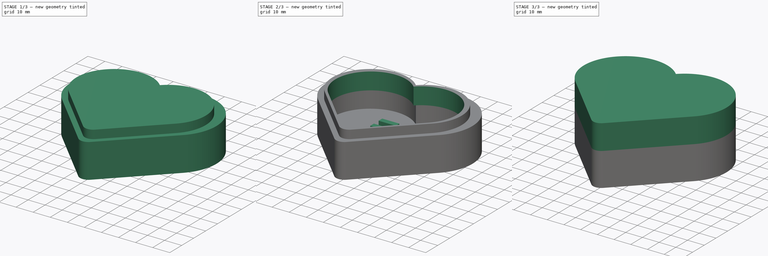
[diagram: build sequence overview — one tinted view per stage of 3, left to right]
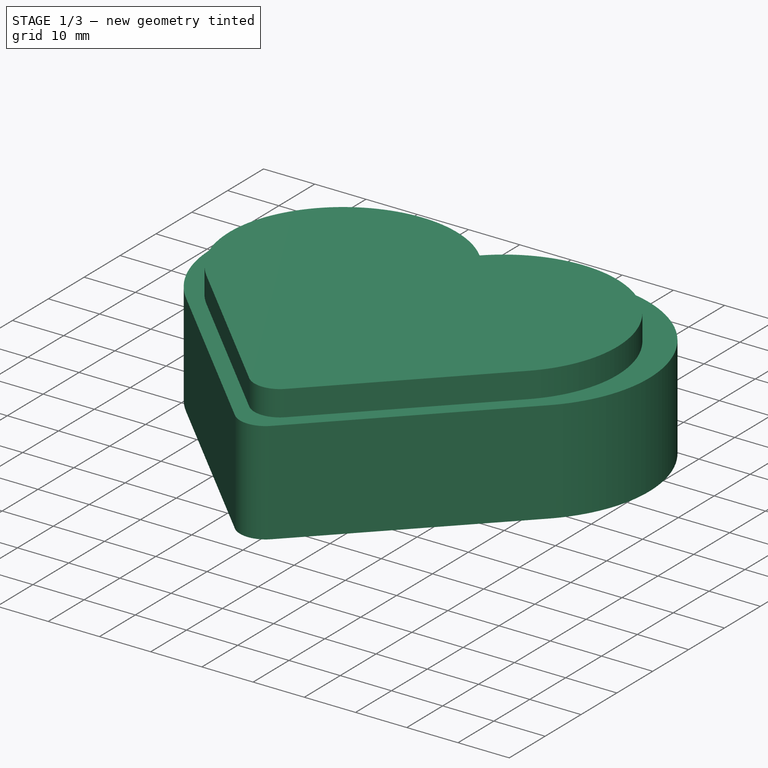
[diagram: stage 1 of 3 — iso view after this stage's code; geometry added in this stage tinted green]
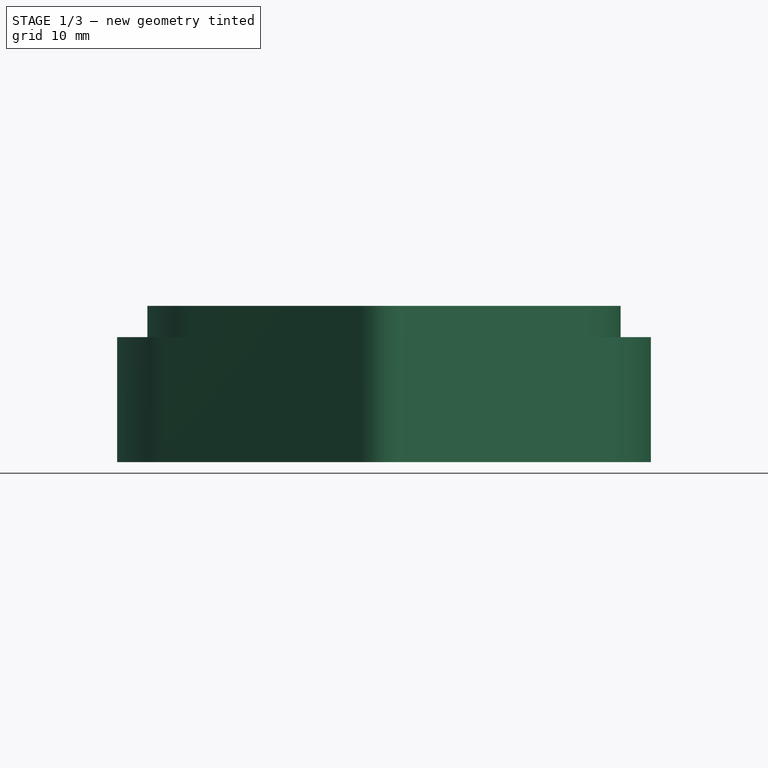
[diagram: stage 1 of 3 — front view after this stage's code; geometry added in this stage tinted green]
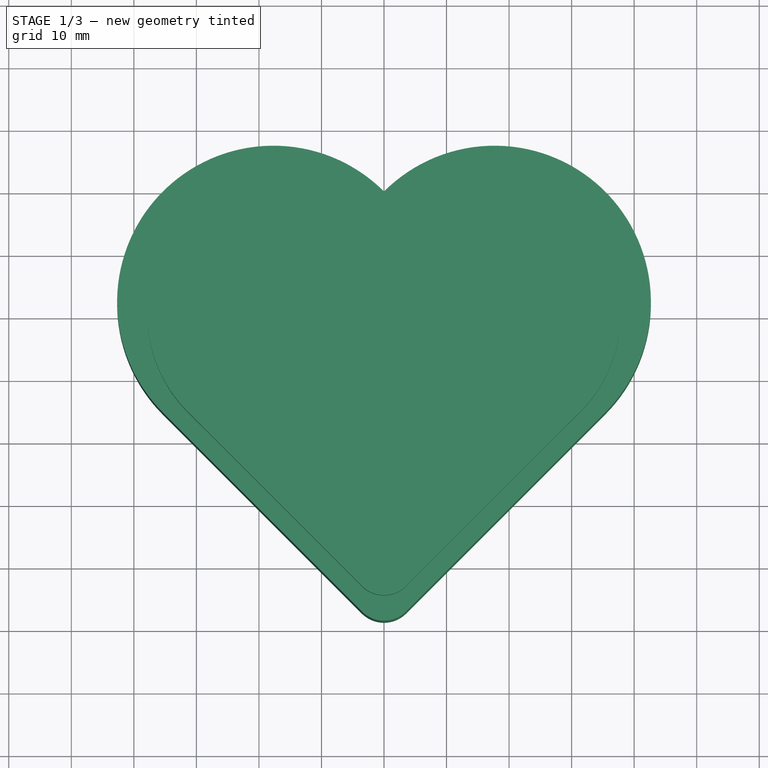
[diagram: stage 1 of 3 — top view after this stage's code; geometry added in this stage tinted green]
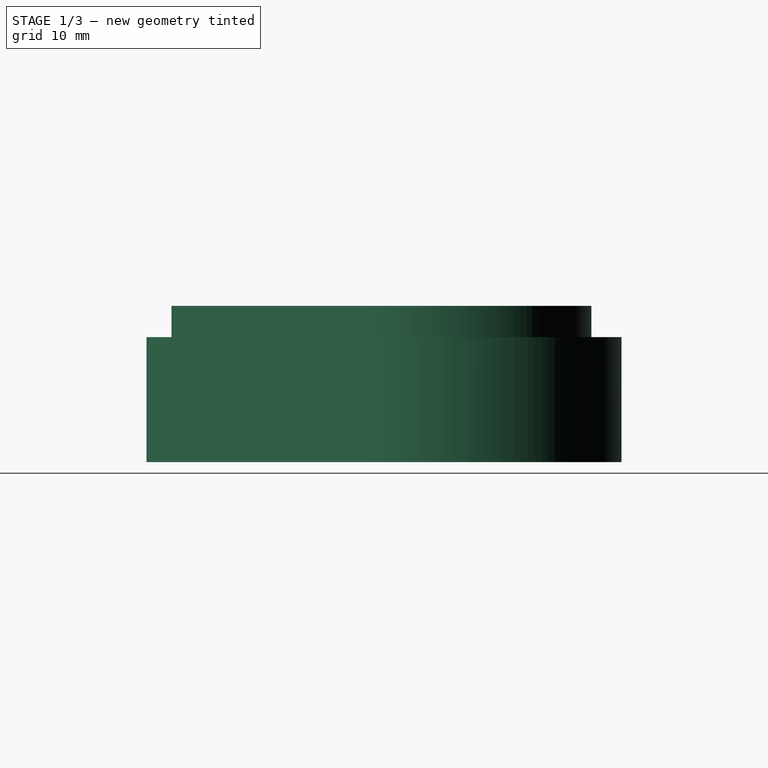
[diagram: stage 1 of 3 — right view after this stage's code; geometry added in this stage tinted green]
FCSTD DOCUMENT  (FreeCAD 0.20R29603 (Git))
Label: box
License: All rights reserved
LicenseURL: http://en.wikipedia.org/wiki/All_rights_reserved
objects: Sketcher::SketchObject×7, PartDesign::Pad×4, PartDesign::Plane×3, PartDesign::Pocket×3, PartDesign::Body×2, Spreadsheet::Sheet×1, PartDesign::Chamfer×1
note: 28 computed .brp shape members not serialized (recipe doc carries the construction recipe); baked Part::Feature solids carry a one-line shape summary decoded from their .brp

FEATURE [Sketcher::SketchObject] Sketch
  FullyConstrained = true
  MapMode = 5
  Support = -> [XY_Plane]
  expr: Constraints[14] = <<Spreadsheet>>.chamfer_size
  expr: Constraints[15] = <<Spreadsheet>>.chamfer_size
  expr: Constraints[9] = <<Spreadsheet>>.heart_size
  sketch-geometry (15):
    g0: LineSegment StartX=0 StartY=0 StartZ=0 EndX=-35.3553 EndY=-35.3553 EndZ=0
    g1: LineSegment StartX=-35.3553 StartY=-35.3553 StartZ=0 EndX=0 EndY=-70.7107 EndZ=0
    g2: LineSegment StartX=0 StartY=-70.7107 StartZ=0 EndX=35.3553 EndY=-35.3553 EndZ=0
    g3: LineSegment StartX=35.3553 StartY=-35.3553 StartZ=0 EndX=0 EndY=0 EndZ=0
    g4: GeomPoint X=-17.6777 Y=-17.6777 Z=0
    g5: GeomPoint X=17.6777 Y=-17.6777 Z=0
    g6: GeomPoint X=-3.53553 Y=-67.1751 Z=0
    g7: GeomPoint X=3.53553 Y=-67.1751 Z=0
    g8: LineSegment StartX=-3.53553 StartY=-67.1751 StartZ=0 EndX=-8.9e-15 EndY=-63.6396 EndZ=0
    g9: LineSegment StartX=-8.9e-15 StartY=-63.6396 StartZ=0 EndX=3.53553 EndY=-67.1751 EndZ=0
    g10: ArcOfCircle CenterX=-8.9e-15 CenterY=-63.6396 CenterZ=0 NormalX=0 NormalY=0 NormalZ=1 AngleXU=0 Radius=5 StartAngle=3.92699 EndAngle=5.49779
    g11: LineSegment StartX=-3.53553 StartY=-67.1751 StartZ=0 EndX=-35.3553 EndY=-35.3553 EndZ=0
    g12: LineSegment StartX=3.53553 StartY=-67.1751 StartZ=0 EndX=35.3553 EndY=-35.3553 EndZ=0
    g13: ArcOfCircle CenterX=17.6777 CenterY=-17.6777 CenterZ=0 NormalX=0 NormalY=0 NormalZ=1 AngleXU=0 Radius=25 StartAngle=5.49779 EndAngle=8.63938
    g14: ArcOfCircle CenterX=-17.6777 CenterY=-17.6777 CenterZ=0 NormalX=0 NormalY=0 NormalZ=1 AngleXU=0 Radius=25 StartAngle=0.785398 EndAngle=3.92699
  constraints (33):
    c: Coincident(g-1,g0)
    c: Coincident(g0,g1)
    c: PointOnObject(g1,g-2)
    c: Coincident(g1,g2)
    c: Coincident(g2,g3)
    c: Coincident(g3,g0)
    c: Horizontal(g0,g2)
    c: Equal(g3,g0)
    c: Equal(g0,g2)
    c: Distance(g3) = 50
    c: Symmetric(g0,g0,g4)
    c: Symmetric(g0,g2,g5)
    c: PointOnObject(g6,g1)
    c: PointOnObject(g7,g2)
    c: Distance(g1,g6) = 5
    c: Distance(g7,g1) = 5
    c: Coincident(g8,g6)
    c: Coincident(g8,g9)
    c: Coincident(g9,g7)
    c: Coincident(g10,g8)
    c: Coincident(g10,g6)
    c: Coincident(g10,g7)
    c: Coincident(g11,g10)
    c: Coincident(g11,g0)
    c: Coincident(g12,g10)
    c: Coincident(g12,g2)
    c: Angle(g8,g9) = 1.5708
    c: Coincident(g13,g5)
    c: Coincident(g13,g12)
    c: Angle(g0,g3) = 1.5708
    c: Coincident(g14,g4)
    c: Coincident(g14,g13)
    c: Coincident(g14,g11)
FEATURE [Spreadsheet::Sheet] Spreadsheet
  cells = A1=Heart_size; B1(heart_size)=50; A2=Heart chamfer; B2(chamfer_size)=5; A3=bottom box height; B3(box_height)=20; A4=Box Wall; B4(box_wall)=4; A5=top box height; B5(top_box_height)=15; A6=Lip spacing; B6(lip_space)=0.2; A7=holder top space; B7(holder_edge_distance)=25; A8=Holder lip thickness; B8(holder_lip_thickness)=3; A9=Holder lip spacing; B9(holder_lip_spacing)=4; A10=Holder lip width; B10(holder_lip_width)=10; A11=Holder lip height; B11(holder_lip_height)=10
FEATURE [PartDesign::Pad] Pad  label="bottom_box_body"
  Direction = (0,0,1)
  Length = 20
  Length2 = 10
  Profile = -> Sketch
  ReferenceAxis = -> Sketch [N_Axis]
  Type = 0
  expr: Length = <<Spreadsheet>>.box_height
FEATURE [PartDesign::Plane] DatumPlane  label="bottom_bottom_plane"
  AttachmentOffset = pos=(0,0,4) rot=(0,0,1;0rad)
  Length = 103.157
  MapMode = 5
  Placement = pos=(0,0,4) rot=(0,0,1;0rad)
  ResizeMode = 0
  Support = -> [XY_Plane]
  Width = 111.478
  expr: .AttachmentOffset.Base.z = <<Spreadsheet>>.box_wall
FEATURE [Sketcher::SketchObject] Sketch001
  FullyConstrained = true
  MapMode = 5
  Placement = pos=(0,0,4) rot=(0,0,1;0rad)
  Support = -> [DatumPlane]
  expr: Constraints[10] = <<Spreadsheet>>.heart_size
  expr: Constraints[16] = Spreadsheet.box_wall
  expr: Constraints[29] = <<Spreadsheet>>.chamfer_size
  expr: Constraints[30] = <<Spreadsheet>>.chamfer_size
  sketch-geometry (21):
    g0: LineSegment StartX=0 StartY=0 StartZ=0 EndX=-35.3553 EndY=-35.3553 EndZ=0
    g1: LineSegment StartX=-35.3553 StartY=-35.3553 StartZ=0 EndX=0 EndY=-70.7107 EndZ=0
    g2: LineSegment StartX=0 StartY=-70.7107 StartZ=0 EndX=35.3553 EndY=-35.3553 EndZ=0
    g3: LineSegment StartX=35.3553 StartY=-35.3553 StartZ=0 EndX=0 EndY=0 EndZ=0
    g4: LineSegment StartX=0 StartY=-70.7107 StartZ=0 EndX=0 EndY=-66.7107 EndZ=0
    g5: LineSegment StartX=0 StartY=0 StartZ=0 EndX=0 EndY=-4 EndZ=0
    g6: LineSegment StartX=0 StartY=-4 StartZ=0 EndX=-31.3553 EndY=-35.3553 EndZ=0
    g7: LineSegment StartX=-31.3553 StartY=-35.3553 StartZ=0 EndX=0 EndY=-66.7107 EndZ=0
    g8: LineSegment StartX=0 StartY=-66.7107 StartZ=0 EndX=31.3553 EndY=-35.3553 EndZ=0
    g9: LineSegment StartX=31.3553 StartY=-35.3553 StartZ=0 EndX=0 EndY=-4 EndZ=0
    g10: GeomPoint X=-3.53553 Y=-63.1751 Z=0
    g11: GeomPoint X=3.53553 Y=-63.1751 Z=0
    g12: LineSegment StartX=-3.53553 StartY=-63.1751 StartZ=0 EndX=3.1e-15 EndY=-59.6396 EndZ=0
    g13: LineSegment StartX=3.1e-15 StartY=-59.6396 StartZ=0 EndX=3.53553 EndY=-63.1751 EndZ=0
    g14: ArcOfCircle CenterX=3.1e-15 CenterY=-59.6396 CenterZ=0 NormalX=0 NormalY=0 NormalZ=1 AngleXU=0 Radius=5 StartAngle=3.92699 EndAngle=5.49779
    g15: LineSegment StartX=-3.53553 StartY=-63.1751 StartZ=0 EndX=-31.3553 EndY=-35.3553 EndZ=0
    g16: LineSegment StartX=3.53553 StartY=-63.1751 StartZ=0 EndX=31.3553 EndY=-35.3553 EndZ=0
    g17: GeomPoint X=-15.6777 Y=-19.6777 Z=0
    g18: GeomPoint X=15.6777 Y=-19.6777 Z=0
    g19: ArcOfCircle CenterX=-15.6777 CenterY=-19.6777 CenterZ=0 NormalX=0 NormalY=0 NormalZ=1 AngleXU=0 Radius=22.1716 StartAngle=0.785398 EndAngle=3.92699
    g20: ArcOfCircle CenterX=15.6777 CenterY=-19.6777 CenterZ=0 NormalX=0 NormalY=0 NormalZ=1 AngleXU=0 Radius=22.1716 StartAngle=5.49779 EndAngle=8.63938
  constraints (49):
    c: Coincident(g-1,g0)
    c: Coincident(g0,g1)
    c: PointOnObject(g1,g-2)
    c: Coincident(g1,g2)
    c: Coincident(g2,g3)
    c: Coincident(g3,g0)
    c: Equal(g0,g3)
    c: Equal(g3,g2)
    c: Equal(g2,g1)
    c: Angle(g0,g3) = 1.5708
    c: Distance(g3) = 50
    c: Coincident(g4,g1)
    c: PointOnObject(g4,g-2)
    c: Coincident(g5,g0)
    c: PointOnObject(g5,g-2)
    c: Equal(g5,g4)
    c: Distance(g4) = 4
    c: Coincident(g5,g6)
    c: Coincident(g6,g7)
    c: Coincident(g7,g4)
    c: Coincident(g7,g8)
    c: Coincident(g8,g9)
    c: Coincident(g9,g6)
    c: Equal(g6,g9)
    c: Equal(g9,g7)
    c: Equal(g7,g8)
    c: Angle(g6,g9) = 1.5708
    c: PointOnObject(g10,g7)
    c: PointOnObject(g11,g8)
    c: Distance(g10,g4) = 5
    c: Distance(g11,g4) = 5
    c: Coincident(g12,g10)
    c: Coincident(g12,g13)
    c: Coincident(g13,g11)
    c: Coincident(g14,g12)
    c: Coincident(g14,g10)
    c: Coincident(g14,g11)
    c: Coincident(g15,g14)
    c: Coincident(g15,g6)
    c: Coincident(g16,g14)
    c: Coincident(g16,g8)
    c: Symmetric(g5,g15,g17)
    c: Symmetric(g5,g16,g18)
    c: Coincident(g19,g17)
    c: Coincident(g19,g15)
    c: Coincident(g20,g18)
    c: Coincident(g20,g16)
    c: Coincident(g20,g19)
    c: Angle(g12,g13) = 1.5708
FEATURE [PartDesign::Pocket] Pocket  label="bottom_box_cavity"
  BaseFeature = -> Pad
  Direction = (0,0,-1)
  Length = 16
  Length2 = 5
  Profile = -> Sketch001
  ReferenceAxis = -> Sketch001 [N_Axis]
  Reversed = true
  Type = 0
  expr: Length = <<Spreadsheet>>.box_height - <<Spreadsheet>>.box_wall
FEATURE [PartDesign::Body] Body001  label="box_top_body"
  Group = -> [DatumPlane001,Sketch002,Pad001,Sketch003,Pocket001]
  Origin = -> Origin001
  Tip = -> Pocket001
FEATURE [PartDesign::Plane] DatumPlane002  label="bottom_box_lip_plane"
  AttachmentOffset = pos=(0,0,15) rot=(0,0,1;0rad)
  Length = 103.157
  MapMode = 5
  Placement = pos=(0,0,15) rot=(0,0,1;0rad)
  ResizeMode = 0
  Support = -> [XY_Plane]
  Width = 111.478
  expr: .AttachmentOffset.Base.x = 0
  expr: .AttachmentOffset.Base.z = <<Spreadsheet>>.box_height - 5
FEATURE [Sketcher::SketchObject] Sketch004
  FullyConstrained = true
  MapMode = 5
  Placement = pos=(0,0,15) rot=(0,0,1;0rad)
  Support = -> [DatumPlane002]
  expr: Constraints[10] = <<Spreadsheet>>.heart_size
  expr: Constraints[16] = Spreadsheet.box_wall
  expr: Constraints[29] = <<Spreadsheet>>.chamfer_size
  expr: Constraints[30] = <<Spreadsheet>>.chamfer_size
  sketch-geometry (21):
    g0: LineSegment StartX=0 StartY=0 StartZ=0 EndX=-35.3553 EndY=-35.3553 EndZ=0
    g1: LineSegment StartX=-35.3553 StartY=-35.3553 StartZ=0 EndX=0 EndY=-70.7107 EndZ=0
    g2: LineSegment StartX=0 StartY=-70.7107 StartZ=0 EndX=35.3553 EndY=-35.3553 EndZ=0
    g3: LineSegment StartX=35.3553 StartY=-35.3553 StartZ=0 EndX=0 EndY=0 EndZ=0
    g4: LineSegment StartX=0 StartY=-70.7107 StartZ=0 EndX=0 EndY=-66.7107 EndZ=0
    g5: LineSegment StartX=0 StartY=0 StartZ=0 EndX=0 EndY=-4 EndZ=0
    g6: LineSegment StartX=0 StartY=-4 StartZ=0 EndX=-31.3553 EndY=-35.3553 EndZ=0
    g7: LineSegment StartX=-31.3553 StartY=-35.3553 StartZ=0 EndX=0 EndY=-66.7107 EndZ=0
    g8: LineSegment StartX=0 StartY=-66.7107 StartZ=0 EndX=31.3553 EndY=-35.3553 EndZ=0
    g9: LineSegment StartX=31.3553 StartY=-35.3553 StartZ=0 EndX=0 EndY=-4 EndZ=0
    g10: GeomPoint X=-3.53553 Y=-63.1751 Z=0
    g11: GeomPoint X=3.53553 Y=-63.1751 Z=0
    g12: LineSegment StartX=-3.53553 StartY=-63.1751 StartZ=0 EndX=3.1e-15 EndY=-59.6396 EndZ=0
    g13: LineSegment StartX=3.1e-15 StartY=-59.6396 StartZ=0 EndX=3.53553 EndY=-63.1751 EndZ=0
    g14: ArcOfCircle CenterX=3.1e-15 CenterY=-59.6396 CenterZ=0 NormalX=0 NormalY=0 NormalZ=1 AngleXU=0 Radius=5 StartAngle=3.92699 EndAngle=5.49779
    g15: LineSegment StartX=-3.53553 StartY=-63.1751 StartZ=0 EndX=-31.3553 EndY=-35.3553 EndZ=0
    g16: LineSegment StartX=3.53553 StartY=-63.1751 StartZ=0 EndX=31.3553 EndY=-35.3553 EndZ=0
    g17: GeomPoint X=-15.6777 Y=-19.6777 Z=0
    g18: GeomPoint X=15.6777 Y=-19.6777 Z=0
    g19: ArcOfCircle CenterX=-15.6777 CenterY=-19.6777 CenterZ=0 NormalX=0 NormalY=0 NormalZ=1 AngleXU=0 Radius=22.1716 StartAngle=0.785398 EndAngle=3.92699
    g20: ArcOfCircle CenterX=15.6777 CenterY=-19.6777 CenterZ=0 NormalX=0 NormalY=0 NormalZ=1 AngleXU=0 Radius=22.1716 StartAngle=5.49779 EndAngle=8.63938
  constraints (49):
    c: Coincident(g-1,g0)
    c: Coincident(g0,g1)
    c: PointOnObject(g1,g-2)
    c: Coincident(g1,g2)
    c: Coincident(g2,g3)
    c: Coincident(g3,g0)
    c: Equal(g0,g3)
    c: Equal(g3,g2)
    c: Equal(g2,g1)
    c: Angle(g0,g3) = 1.5708
    c: Distance(g3) = 50
    c: Coincident(g4,g1)
    c: PointOnObject(g4,g-2)
    c: Coincident(g5,g0)
    c: PointOnObject(g5,g-2)
    c: Equal(g5,g4)
    c: Distance(g4) = 4
    c: Coincident(g5,g6)
    c: Coincident(g6,g7)
    c: Coincident(g7,g4)
    c: Coincident(g7,g8)
    c: Coincident(g8,g9)
    c: Coincident(g9,g6)
    c: Equal(g6,g9)
    c: Equal(g9,g7)
    c: Equal(g7,g8)
    c: Angle(g6,g9) = 1.5708
    c: PointOnObject(g10,g7)
    c: PointOnObject(g11,g8)
    c: Distance(g10,g4) = 5
    c: Distance(g11,g4) = 5
    c: Coincident(g12,g10)
    c: Coincident(g12,g13)
    c: Coincident(g13,g11)
    c: Coincident(g14,g12)
    c: Coincident(g14,g10)
    c: Coincident(g14,g11)
    c: Coincident(g15,g14)
    c: Coincident(g15,g6)
    c: Coincident(g16,g14)
    c: Coincident(g16,g8)
    c: Symmetric(g5,g15,g17)
    c: Symmetric(g5,g16,g18)
    c: Coincident(g19,g17)
    c: Coincident(g19,g15)
    c: Coincident(g20,g18)
    c: Coincident(g20,g16)
    c: Coincident(g20,g19)
    c: Angle(g12,g13) = 1.5708
FEATURE [PartDesign::Pad] Pad002  label="bottom_box_lip_pad"
  BaseFeature = -> Pocket
  Direction = (0,0,1)
  Length = 10
  Length2 = 10
  Profile = -> Sketch004
  ReferenceAxis = -> Sketch004 [N_Axis]
  Type = 0
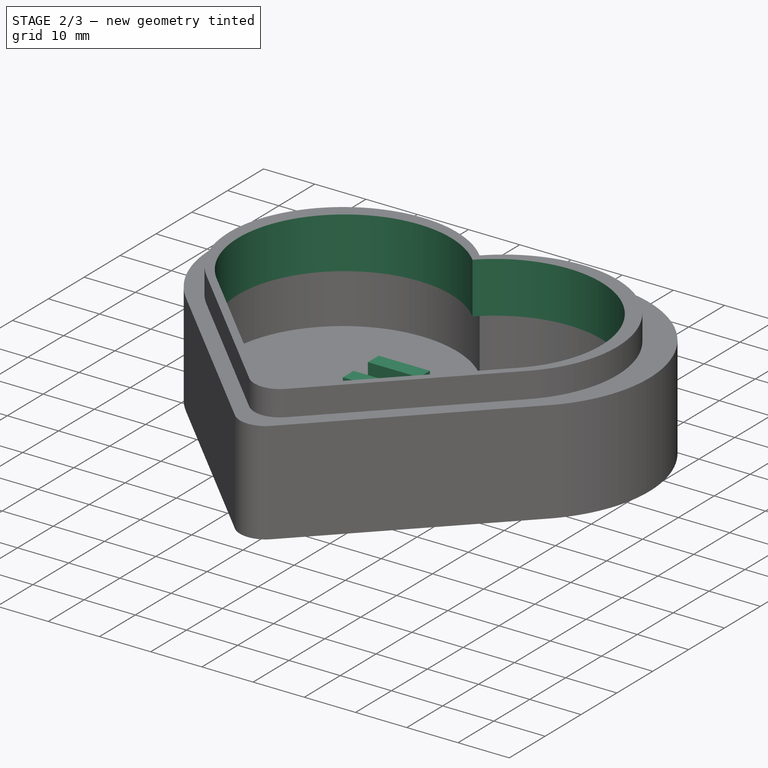
[diagram: stage 2 of 3 — iso view after this stage's code; geometry added in this stage tinted green]
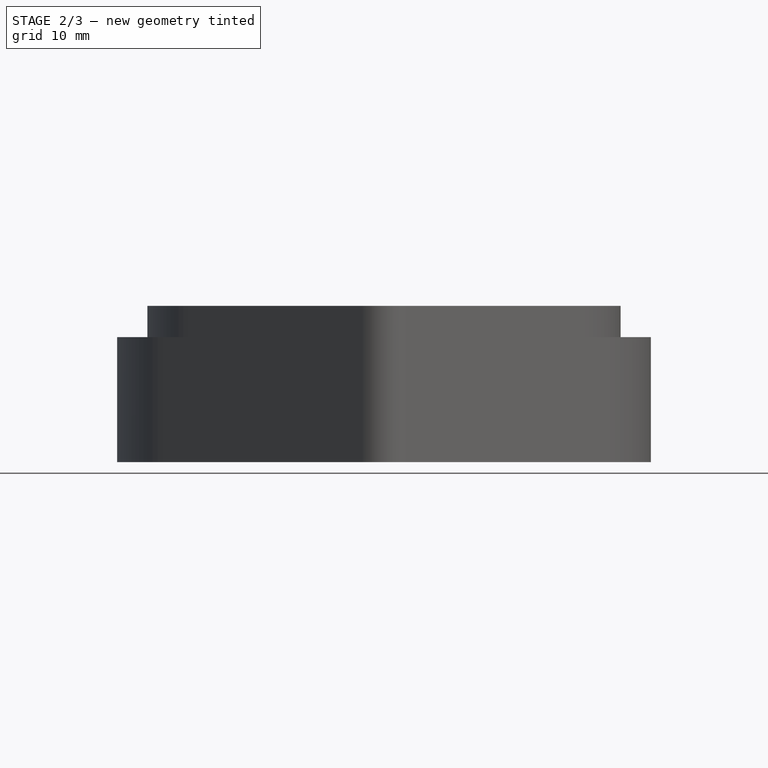
[diagram: stage 2 of 3 — front view after this stage's code; geometry added in this stage tinted green]
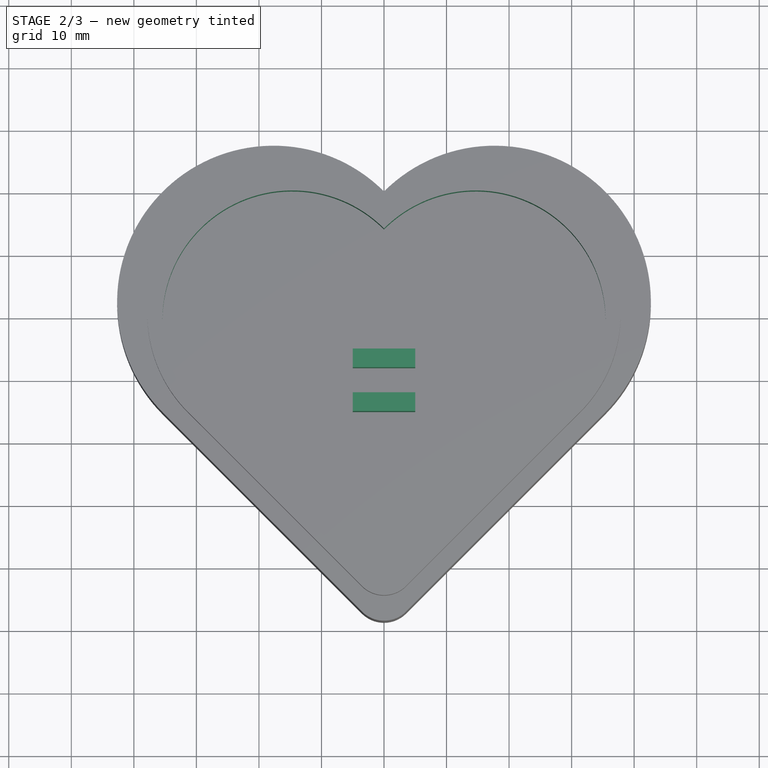
[diagram: stage 2 of 3 — top view after this stage's code; geometry added in this stage tinted green]
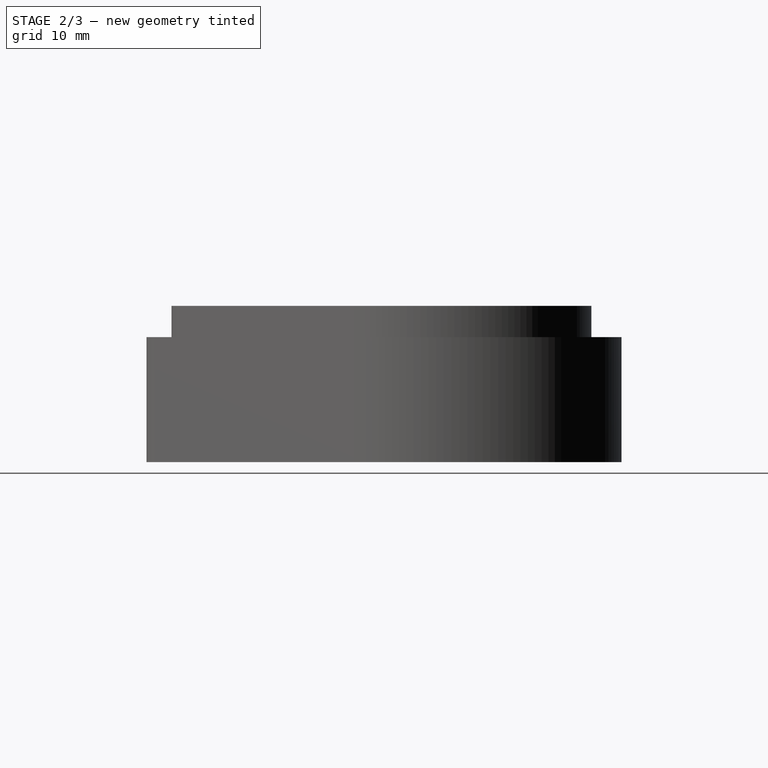
[diagram: stage 2 of 3 — right view after this stage's code; geometry added in this stage tinted green]
FEATURE [Sketcher::SketchObject] Sketch005
  FullyConstrained = true
  MapMode = 5
  Placement = pos=(0,0,15) rot=(0,0,1;0rad)
  Support = -> [DatumPlane002]
  expr: Constraints[10] = <<Spreadsheet>>.heart_size
  expr: Constraints[16] = Spreadsheet.box_wall + 2
  expr: Constraints[29] = <<Spreadsheet>>.chamfer_size
  expr: Constraints[30] = <<Spreadsheet>>.chamfer_size
  sketch-geometry (21):
    g0: LineSegment StartX=0 StartY=0 StartZ=0 EndX=-35.3553 EndY=-35.3553 EndZ=0
    g1: LineSegment StartX=-35.3553 StartY=-35.3553 StartZ=0 EndX=0 EndY=-70.7107 EndZ=0
    g2: LineSegment StartX=0 StartY=-70.7107 StartZ=0 EndX=35.3553 EndY=-35.3553 EndZ=0
    g3: LineSegment StartX=35.3553 StartY=-35.3553 StartZ=0 EndX=0 EndY=0 EndZ=0
    g4: LineSegment StartX=0 StartY=-70.7107 StartZ=0 EndX=0 EndY=-64.7107 EndZ=0
    g5: LineSegment StartX=0 StartY=0 StartZ=0 EndX=-3.6e-15 EndY=-6 EndZ=0
    g6: LineSegment StartX=-3.6e-15 StartY=-6 StartZ=0 EndX=-29.3553 EndY=-35.3553 EndZ=0
    g7: LineSegment StartX=-29.3553 StartY=-35.3553 StartZ=0 EndX=0 EndY=-64.7107 EndZ=0
    g8: LineSegment StartX=0 StartY=-64.7107 StartZ=0 EndX=29.3553 EndY=-35.3553 EndZ=0
    g9: LineSegment StartX=29.3553 StartY=-35.3553 StartZ=0 EndX=-3.6e-15 EndY=-6 EndZ=0
    g10: GeomPoint X=-3.53553 Y=-61.1751 Z=0
    g11: GeomPoint X=3.53553 Y=-61.1751 Z=0
    g12: LineSegment StartX=-3.53553 StartY=-61.1751 StartZ=0 EndX=0 EndY=-57.6396 EndZ=0
    g13: LineSegment StartX=0 StartY=-57.6396 StartZ=0 EndX=3.53553 EndY=-61.1751 EndZ=0
    g14: ArcOfCircle CenterX=0 CenterY=-57.6396 CenterZ=0 NormalX=0 NormalY=0 NormalZ=1 AngleXU=0 Radius=5 StartAngle=3.92699 EndAngle=5.49779
    g15: LineSegment StartX=-3.53553 StartY=-61.1751 StartZ=0 EndX=-29.3553 EndY=-35.3553 EndZ=0
    g16: LineSegment StartX=3.53553 StartY=-61.1751 StartZ=0 EndX=29.3553 EndY=-35.3553 EndZ=0
    g17: GeomPoint X=-14.6777 Y=-20.6777 Z=0
    g18: GeomPoint X=14.6777 Y=-20.6777 Z=0
    g19: ArcOfCircle CenterX=-14.6777 CenterY=-20.6777 CenterZ=0 NormalX=0 NormalY=0 NormalZ=1 AngleXU=0 Radius=20.7574 StartAngle=0.785398 EndAngle=3.92699
    g20: ArcOfCircle CenterX=14.6777 CenterY=-20.6777 CenterZ=0 NormalX=0 NormalY=0 NormalZ=1 AngleXU=0 Radius=20.7574 StartAngle=5.49779 EndAngle=8.63938
  constraints (49):
    c: Coincident(g-1,g0)
    c: Coincident(g0,g1)
    c: PointOnObject(g1,g-2)
    c: Coincident(g1,g2)
    c: Coincident(g2,g3)
    c: Coincident(g3,g0)
    c: Equal(g0,g3)
    c: Equal(g3,g2)
    c: Equal(g2,g1)
    c: Angle(g0,g3) = 1.5708
    c: Distance(g3) = 50
    c: Coincident(g4,g1)
    c: PointOnObject(g4,g-2)
    c: Coincident(g5,g0)
    c: PointOnObject(g5,g-2)
    c: Equal(g5,g4)
    c: Distance(g4) = 6
    c: Coincident(g5,g6)
    c: Coincident(g6,g7)
    c: Coincident(g7,g4)
    c: Coincident(g7,g8)
    c: Coincident(g8,g9)
    c: Coincident(g9,g6)
    c: Equal(g6,g9)
    c: Equal(g9,g7)
    c: Equal(g7,g8)
    c: Angle(g6,g9) = 1.5708
    c: PointOnObject(g10,g7)
    c: PointOnObject(g11,g8)
    c: Distance(g10,g4) = 5
    c: Distance(g11,g4) = 5
    c: Coincident(g12,g10)
    c: Coincident(g12,g13)
    c: Coincident(g13,g11)
    c: Coincident(g14,g12)
    c: Coincident(g14,g10)
    c: Coincident(g14,g11)
    c: Coincident(g15,g14)
    c: Coincident(g15,g6)
    c: Coincident(g16,g14)
    c: Coincident(g16,g8)
    c: Symmetric(g5,g15,g17)
    c: Symmetric(g5,g16,g18)
    c: Coincident(g19,g17)
    c: Coincident(g19,g15)
    c: Coincident(g20,g18)
    c: Coincident(g20,g16)
    c: Coincident(g20,g19)
    c: Angle(g12,g13) = 1.5708
FEATURE [PartDesign::Pocket] Pocket002  label="bottom_box_lip_pocket"
  BaseFeature = -> Pad002
  Direction = (0,0,-1)
  Length = 10
  Length2 = 5
  Profile = -> Sketch005
  ReferenceAxis = -> Sketch005 [N_Axis]
  Reversed = true
  Type = 0
FEATURE [Sketcher::SketchObject] Sketch006
  FullyConstrained = true
  MapMode = 5
  Placement = pos=(0,0,4) rot=(0,0,1;0rad)
  Support = -> [DatumPlane]
  expr: Constraints[12] = <<Spreadsheet>>.holder_lip_thickness
  expr: Constraints[13] = <<Spreadsheet>>.holder_lip_width
  expr: Constraints[16] = Spreadsheet.holder_lip_spacing
  expr: Constraints[2] = <<Spreadsheet>>.holder_edge_distance
  sketch-geometry (10):
    g0: LineSegment StartX=0 StartY=0 StartZ=0 EndX=0 EndY=-25 EndZ=0
    g1: LineSegment StartX=-5 StartY=-28 StartZ=0 EndX=5 EndY=-28 EndZ=0
    g2: LineSegment StartX=5 StartY=-28 StartZ=0 EndX=5 EndY=-25 EndZ=0
    g3: LineSegment StartX=5 StartY=-25 StartZ=0 EndX=-5 EndY=-25 EndZ=0
    g4: LineSegment StartX=-5 StartY=-25 StartZ=0 EndX=-5 EndY=-28 EndZ=0
    g5: LineSegment StartX=-4e-16 StartY=-28 StartZ=0 EndX=0 EndY=-32 EndZ=0
    g6: LineSegment StartX=-5 StartY=-32 StartZ=0 EndX=5 EndY=-32 EndZ=0
    g7: LineSegment StartX=5 StartY=-32 StartZ=0 EndX=5 EndY=-35 EndZ=0
    g8: LineSegment StartX=5 StartY=-35 StartZ=0 EndX=-5 EndY=-35 EndZ=0
    g9: LineSegment StartX=-5 StartY=-35 StartZ=0 EndX=-5 EndY=-32 EndZ=0
  constraints (28):
    c: Coincident(g0,g-1)
    c: PointOnObject(g0,g-2)
    c: Distance(g0) = 25
    c: Coincident(g1,g2)
    c: Coincident(g2,g3)
    c: Coincident(g3,g4)
    c: Coincident(g4,g1)
    c: Horizontal(g1)
    c: Horizontal(g3)
    c: Vertical(g2)
    c: Vertical(g4)
    c: Symmetric(g3,g2,g0)
    c: Distance(g2) = 3
    c: Distance(g3) = 10
    c: PointOnObject(g5,g-2)
    c: Symmetric(g1,g1,g5)
    c: Distance(g5) = 4
    c: Coincident(g6,g7)
    c: Coincident(g7,g8)
    c: Coincident(g8,g9)
    c: Coincident(g9,g6)
    c: Horizontal(g6)
    c: Horizontal(g8)
    c: Vertical(g7)
    c: Vertical(g9)
    c: Symmetric(g6,g6,g5)
    c: Equal(g6,g3)
    c: Equal(g7,g2)
FEATURE [PartDesign::Pad] Pad003  label="holder_lips_pad"
  BaseFeature = -> Pocket002
  Direction = (0,0,1)
  Length = 10
  Length2 = 10
  Profile = -> Sketch006
  ReferenceAxis = -> Sketch006 [N_Axis]
  Type = 0
  expr: Length = <<Spreadsheet>>.holder_lip_height
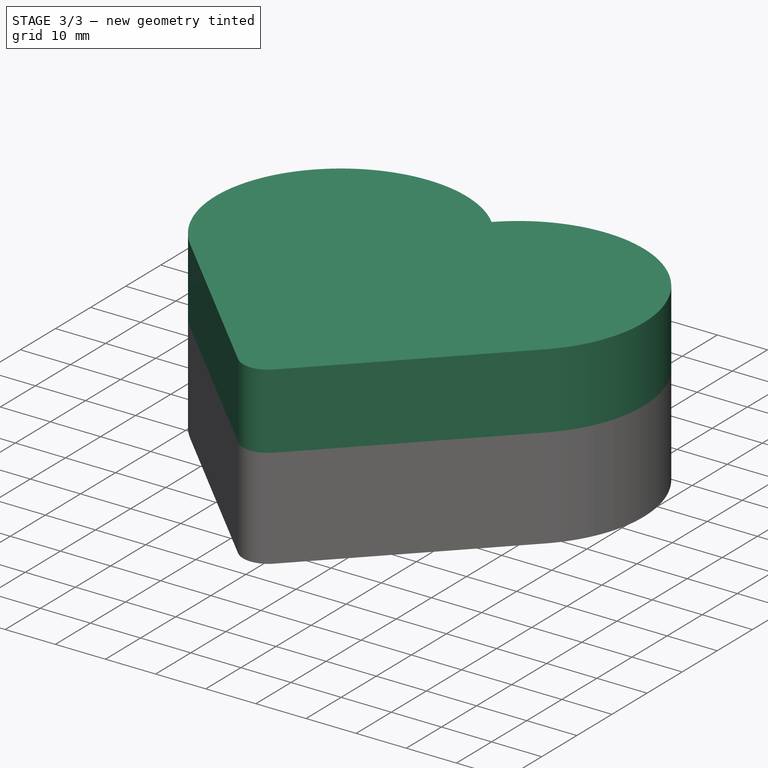
[diagram: stage 3 of 3 — iso view after this stage's code; geometry added in this stage tinted green]
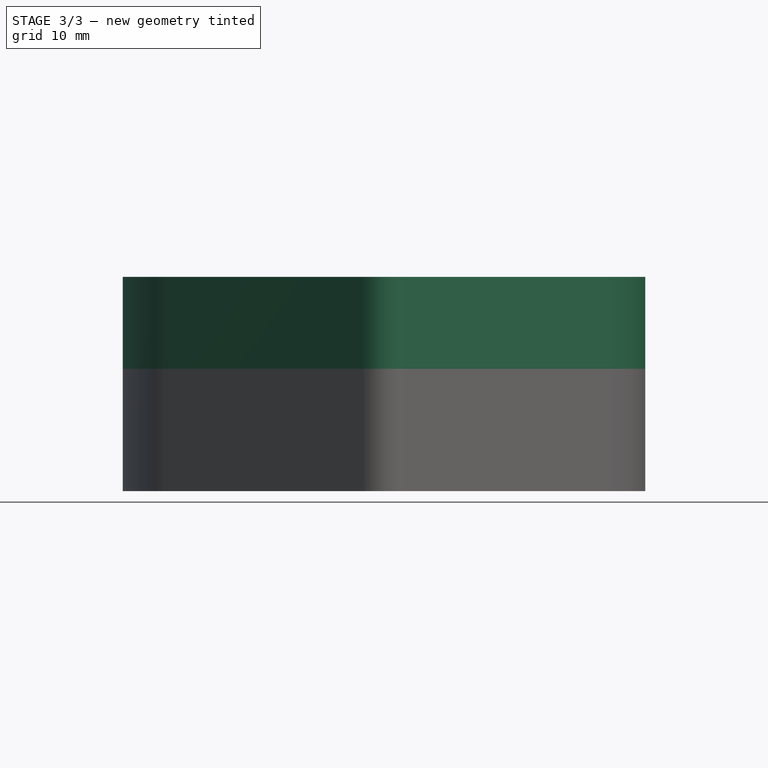
[diagram: stage 3 of 3 — front view after this stage's code; geometry added in this stage tinted green]
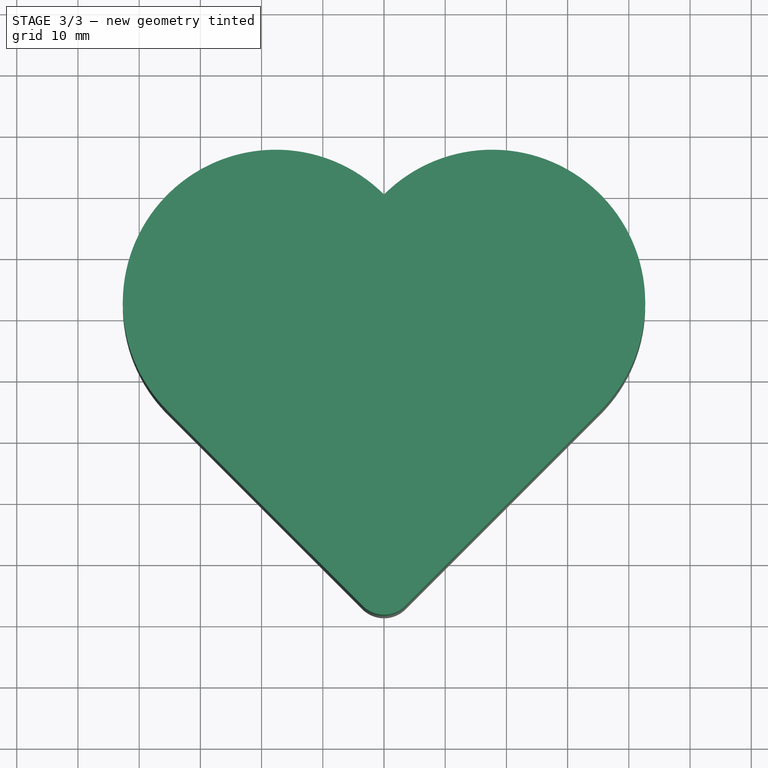
[diagram: stage 3 of 3 — top view after this stage's code; geometry added in this stage tinted green]
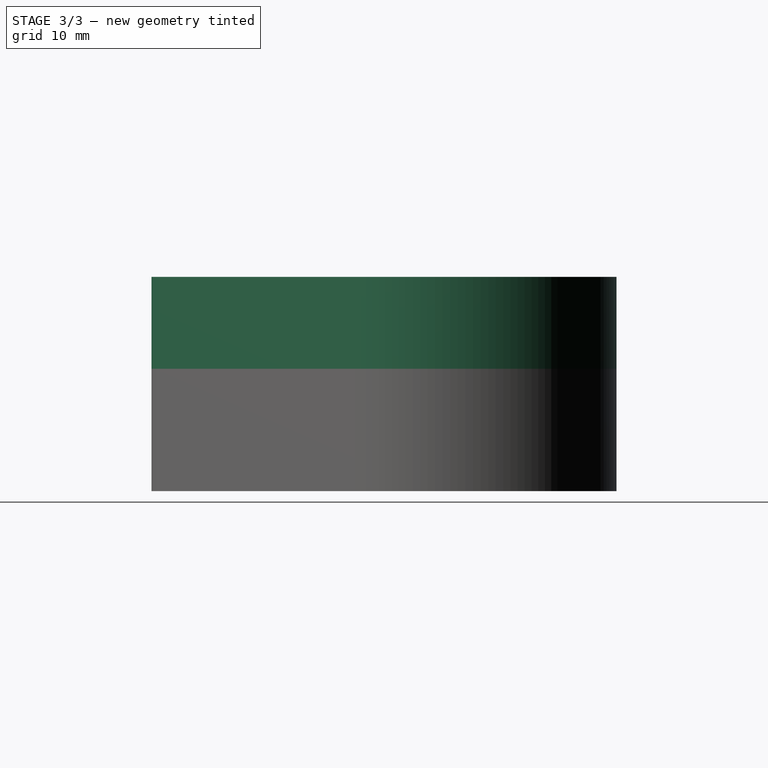
[diagram: stage 3 of 3 — right view after this stage's code; geometry added in this stage tinted green]
FEATURE [PartDesign::Plane] DatumPlane001  label="top_bottom_plane"
  AttachmentOffset = pos=(0,0,20) rot=(0,0,1;0rad)
  Length = 103.157
  MapMode = 5
  Placement = pos=(0,0,20) rot=(0,0,1;0rad)
  ResizeMode = 0
  Support = -> [XY_Plane001]
  Width = 111.478
  expr: .AttachmentOffset.Base.z = <<Spreadsheet>>.box_height
FEATURE [Sketcher::SketchObject] Sketch002
  FullyConstrained = true
  MapMode = 5
  Placement = pos=(0,0,20) rot=(0,0,1;0rad)
  Support = -> [DatumPlane001]
  expr: Constraints[14] = <<Spreadsheet>>.chamfer_size
  expr: Constraints[15] = <<Spreadsheet>>.chamfer_size
  expr: Constraints[9] = <<Spreadsheet>>.heart_size
  sketch-geometry (15):
    g0: LineSegment StartX=0 StartY=0 StartZ=0 EndX=-35.3553 EndY=-35.3553 EndZ=0
    g1: LineSegment StartX=-35.3553 StartY=-35.3553 StartZ=0 EndX=0 EndY=-70.7107 EndZ=0
    g2: LineSegment StartX=0 StartY=-70.7107 StartZ=0 EndX=35.3553 EndY=-35.3553 EndZ=0
    g3: LineSegment StartX=35.3553 StartY=-35.3553 StartZ=0 EndX=0 EndY=0 EndZ=0
    g4: GeomPoint X=-17.6777 Y=-17.6777 Z=0
    g5: GeomPoint X=17.6777 Y=-17.6777 Z=0
    g6: GeomPoint X=-3.53553 Y=-67.1751 Z=0
    g7: GeomPoint X=3.53553 Y=-67.1751 Z=0
    g8: LineSegment StartX=-3.53553 StartY=-67.1751 StartZ=0 EndX=-8.9e-15 EndY=-63.6396 EndZ=0
    g9: LineSegment StartX=-8.9e-15 StartY=-63.6396 StartZ=0 EndX=3.53553 EndY=-67.1751 EndZ=0
    g10: ArcOfCircle CenterX=-8.9e-15 CenterY=-63.6396 CenterZ=0 NormalX=0 NormalY=0 NormalZ=1 AngleXU=0 Radius=5 StartAngle=3.92699 EndAngle=5.49779
    g11: LineSegment StartX=-3.53553 StartY=-67.1751 StartZ=0 EndX=-35.3553 EndY=-35.3553 EndZ=0
    g12: LineSegment StartX=3.53553 StartY=-67.1751 StartZ=0 EndX=35.3553 EndY=-35.3553 EndZ=0
    g13: ArcOfCircle CenterX=17.6777 CenterY=-17.6777 CenterZ=0 NormalX=0 NormalY=0 NormalZ=1 AngleXU=0 Radius=25 StartAngle=5.49779 EndAngle=8.63938
    g14: ArcOfCircle CenterX=-17.6777 CenterY=-17.6777 CenterZ=0 NormalX=0 NormalY=0 NormalZ=1 AngleXU=0 Radius=25 StartAngle=0.785398 EndAngle=3.92699
  constraints (33):
    c: Coincident(g-1,g0)
    c: Coincident(g0,g1)
    c: PointOnObject(g1,g-2)
    c: Coincident(g1,g2)
    c: Coincident(g2,g3)
    c: Coincident(g3,g0)
    c: Horizontal(g0,g2)
    c: Equal(g3,g0)
    c: Equal(g0,g2)
    c: Distance(g3) = 50
    c: Symmetric(g0,g0,g4)
    c: Symmetric(g0,g2,g5)
    c: PointOnObject(g6,g1)
    c: PointOnObject(g7,g2)
    c: Distance(g1,g6) = 5
    c: Distance(g7,g1) = 5
    c: Coincident(g8,g6)
    c: Coincident(g8,g9)
    c: Coincident(g9,g7)
    c: Coincident(g10,g8)
    c: Coincident(g10,g6)
    c: Coincident(g10,g7)
    c: Coincident(g11,g10)
    c: Coincident(g11,g0)
    c: Coincident(g12,g10)
    c: Coincident(g12,g2)
    c: Angle(g8,g9) = 1.5708
    c: Coincident(g13,g5)
    c: Coincident(g13,g12)
    c: Angle(g0,g3) = 1.5708
    c: Coincident(g14,g4)
    c: Coincident(g14,g13)
    c: Coincident(g14,g11)
FEATURE [PartDesign::Pad] Pad001  label="top_box_pad"
  Direction = (0,0,1)
  Length = 15
  Length2 = 10
  Placement = pos=(0,0,20) rot=(0,0,1;0rad)
  Profile = -> Sketch002
  ReferenceAxis = -> Sketch002 [N_Axis]
  Type = 0
  expr: Length = <<Spreadsheet>>.top_box_height
FEATURE [Sketcher::SketchObject] Sketch003
  FullyConstrained = true
  MapMode = 5
  Placement = pos=(0,0,20) rot=(0,0,1;0rad)
  Support = -> [DatumPlane001]
  expr: Constraints[10] = <<Spreadsheet>>.heart_size
  expr: Constraints[16] = Spreadsheet.box_wall - Spreadsheet.lip_space
  expr: Constraints[29] = <<Spreadsheet>>.chamfer_size
  expr: Constraints[30] = <<Spreadsheet>>.chamfer_size
  sketch-geometry (21):
    g0: LineSegment StartX=0 StartY=0 StartZ=0 EndX=-35.3553 EndY=-35.3553 EndZ=0
    g1: LineSegment StartX=-35.3553 StartY=-35.3553 StartZ=0 EndX=0 EndY=-70.7107 EndZ=0
    g2: LineSegment StartX=0 StartY=-70.7107 StartZ=0 EndX=35.3553 EndY=-35.3553 EndZ=0
    g3: LineSegment StartX=35.3553 StartY=-35.3553 StartZ=0 EndX=0 EndY=0 EndZ=0
    g4: LineSegment StartX=0 StartY=-70.7107 StartZ=0 EndX=0 EndY=-66.9107 EndZ=0
    g5: LineSegment StartX=0 StartY=0 StartZ=0 EndX=0 EndY=-3.8 EndZ=0
    g6: LineSegment StartX=0 StartY=-3.8 StartZ=0 EndX=-31.5553 EndY=-35.3553 EndZ=0
    g7: LineSegment StartX=-31.5553 StartY=-35.3553 StartZ=0 EndX=0 EndY=-66.9107 EndZ=0
    g8: LineSegment StartX=0 StartY=-66.9107 StartZ=0 EndX=31.5553 EndY=-35.3553 EndZ=0
    g9: LineSegment StartX=31.5553 StartY=-35.3553 StartZ=0 EndX=0 EndY=-3.8 EndZ=0
    g10: GeomPoint X=-3.53553 Y=-63.3751 Z=0
    g11: GeomPoint X=3.53553 Y=-63.3751 Z=0
    g12: LineSegment StartX=-3.53553 StartY=-63.3751 StartZ=0 EndX=-6.2e-15 EndY=-59.8396 EndZ=0
    g13: LineSegment StartX=-6.2e-15 StartY=-59.8396 StartZ=0 EndX=3.53553 EndY=-63.3751 EndZ=0
    g14: ArcOfCircle CenterX=-6.2e-15 CenterY=-59.8396 CenterZ=0 NormalX=0 NormalY=0 NormalZ=1 AngleXU=0 Radius=5 StartAngle=3.92699 EndAngle=5.49779
    g15: LineSegment StartX=-3.53553 StartY=-63.3751 StartZ=0 EndX=-31.5553 EndY=-35.3553 EndZ=0
    g16: LineSegment StartX=3.53553 StartY=-63.3751 StartZ=0 EndX=31.5553 EndY=-35.3553 EndZ=0
    g17: GeomPoint X=-15.7777 Y=-19.5777 Z=0
    g18: GeomPoint X=15.7777 Y=-19.5777 Z=0
    g19: ArcOfCircle CenterX=-15.7777 CenterY=-19.5777 CenterZ=0 NormalX=0 NormalY=0 NormalZ=1 AngleXU=0 Radius=22.313 StartAngle=0.785398 EndAngle=3.92699
    g20: ArcOfCircle CenterX=15.7777 CenterY=-19.5777 CenterZ=0 NormalX=0 NormalY=0 NormalZ=1 AngleXU=0 Radius=22.313 StartAngle=5.49779 EndAngle=8.63938
  constraints (49):
    c: Coincident(g-1,g0)
    c: Coincident(g0,g1)
    c: PointOnObject(g1,g-2)
    c: Coincident(g1,g2)
    c: Coincident(g2,g3)
    c: Coincident(g3,g0)
    c: Equal(g0,g3)
    c: Equal(g3,g2)
    c: Equal(g2,g1)
    c: Angle(g0,g3) = 1.5708
    c: Distance(g3) = 50
    c: Coincident(g4,g1)
    c: PointOnObject(g4,g-2)
    c: Coincident(g5,g0)
    c: PointOnObject(g5,g-2)
    c: Equal(g5,g4)
    c: Distance(g4) = 3.8
    c: Coincident(g5,g6)
    c: Coincident(g6,g7)
    c: Coincident(g7,g4)
    c: Coincident(g7,g8)
    c: Coincident(g8,g9)
    c: Coincident(g9,g6)
    c: Equal(g6,g9)
    c: Equal(g9,g7)
    c: Equal(g7,g8)
    c: Angle(g6,g9) = 1.5708
    c: PointOnObject(g10,g7)
    c: PointOnObject(g11,g8)
    c: Distance(g10,g4) = 5
    c: Distance(g11,g4) = 5
    c: Coincident(g12,g10)
    c: Coincident(g12,g13)
    c: Coincident(g13,g11)
    c: Coincident(g14,g12)
    c: Coincident(g14,g10)
    c: Coincident(g14,g11)
    c: Coincident(g15,g14)
    c: Coincident(g15,g6)
    c: Coincident(g16,g14)
    c: Coincident(g16,g8)
    c: Symmetric(g5,g15,g17)
    c: Symmetric(g5,g16,g18)
    c: Coincident(g19,g17)
    c: Coincident(g19,g15)
    c: Coincident(g20,g18)
    c: Coincident(g20,g16)
    c: Coincident(g20,g19)
    c: Angle(g12,g13) = 1.5708
FEATURE [PartDesign::Pocket] Pocket001  label="top_box_pocket"
  BaseFeature = -> Pad001
  Direction = (0,0,-1)
  Length = 11
  Length2 = 5
  Placement = pos=(0,0,20) rot=(0,0,1;0rad)
  Profile = -> Sketch003
  ReferenceAxis = -> Sketch003 [N_Axis]
  Reversed = true
  Type = 0
  expr: Length = <<Spreadsheet>>.top_box_height - <<Spreadsheet>>.box_wall
FEATURE [PartDesign::Chamfer] Chamfer
  Angle = 45
  Base = -> Pad003 [Edge47,Edge46,Edge48,Edge50,Edge49]
  BaseFeature = -> Pad003
  ChamferType = 0
  FlipDirection = false
  Size = 1
  Size2 = 1
  SupportTransform = false
  UseAllEdges = false
FEATURE [PartDesign::Body] Body  label="box_bottom_body"
  Group = -> [Sketch,Pad,DatumPlane,Sketch001,Pocket,DatumPlane002,Sketch004,Pad002,Sketch005,Pocket002,Sketch006,Pad003,Chamfer]
  Origin = -> Origin
  Tip = -> Chamfer
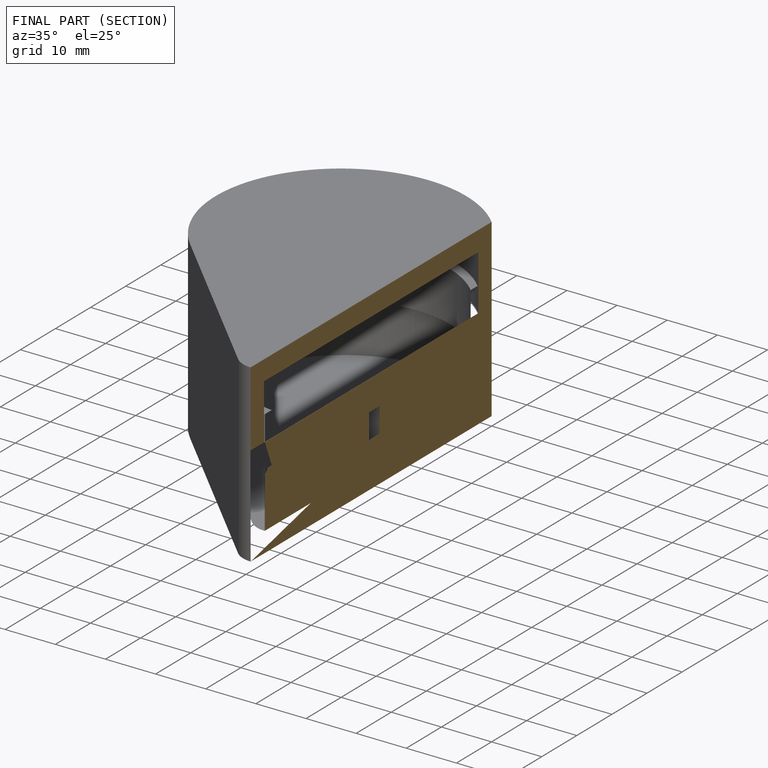
[diagram: finished part — half-section view (interior)]
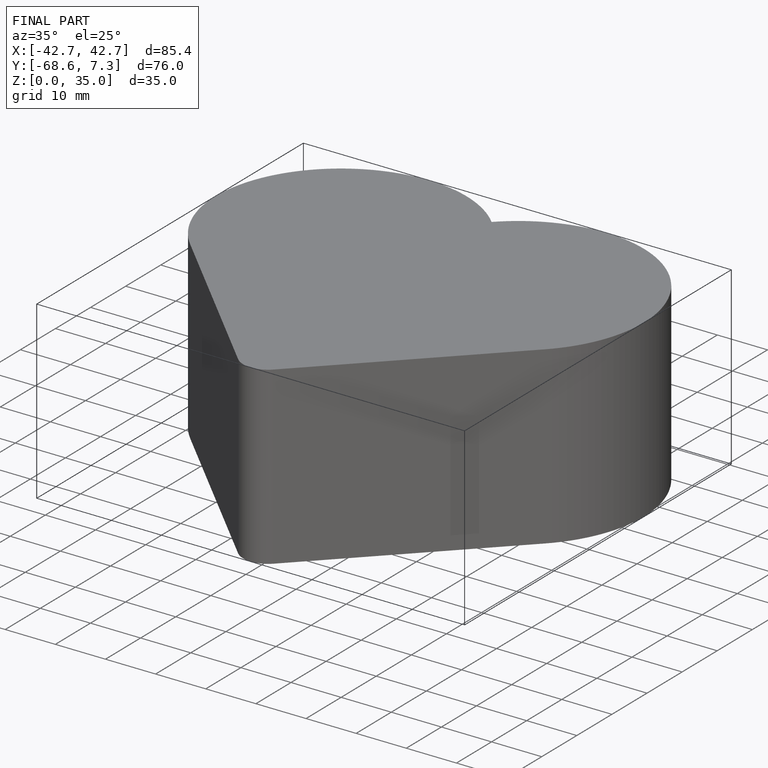
[diagram: finished part — iso view with bounding-box wireframe]
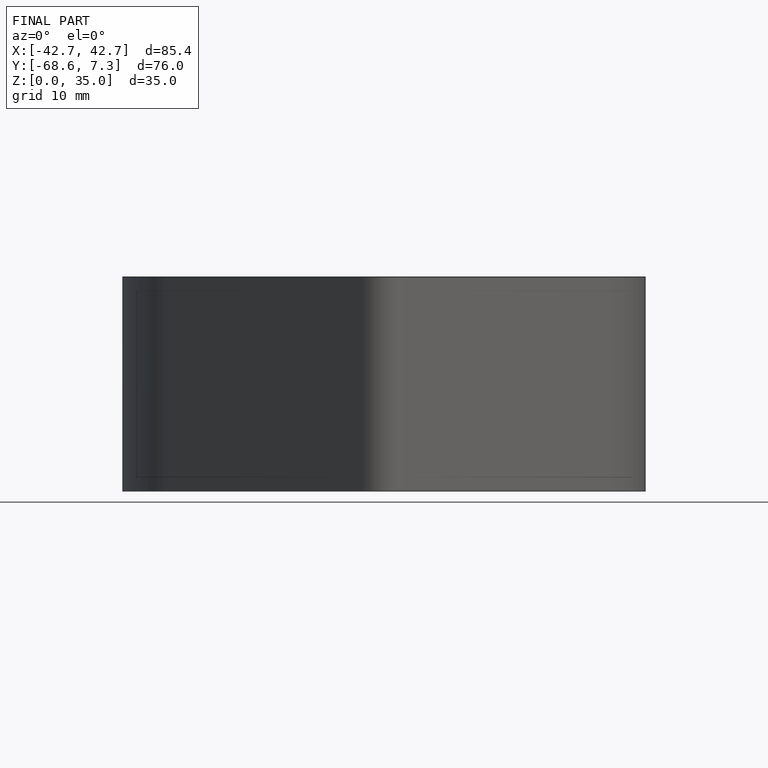
[diagram: finished part — front view with bounding-box wireframe]
